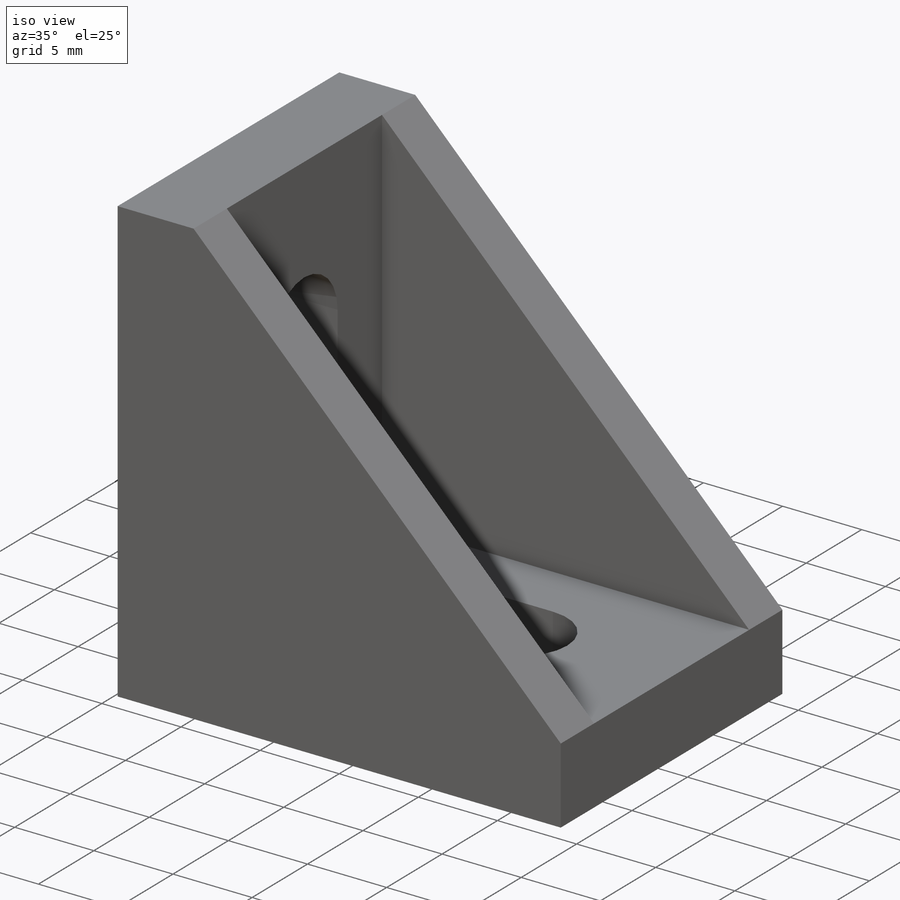
[diagram: iso view]
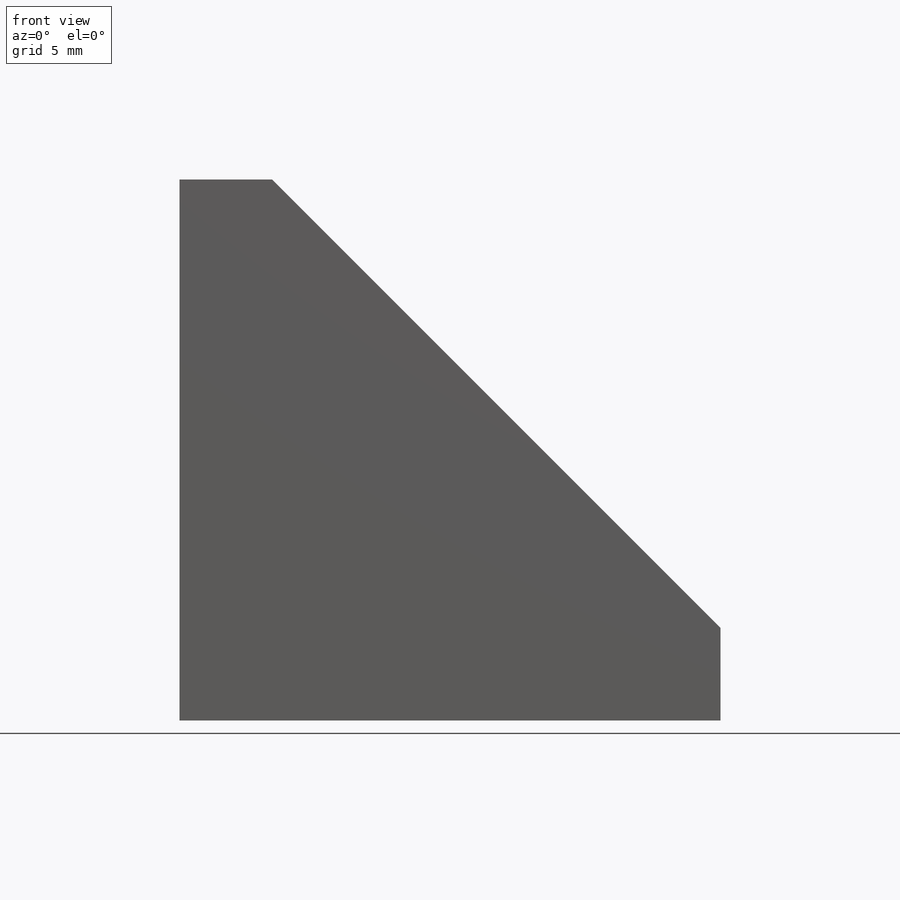
[diagram: front view]
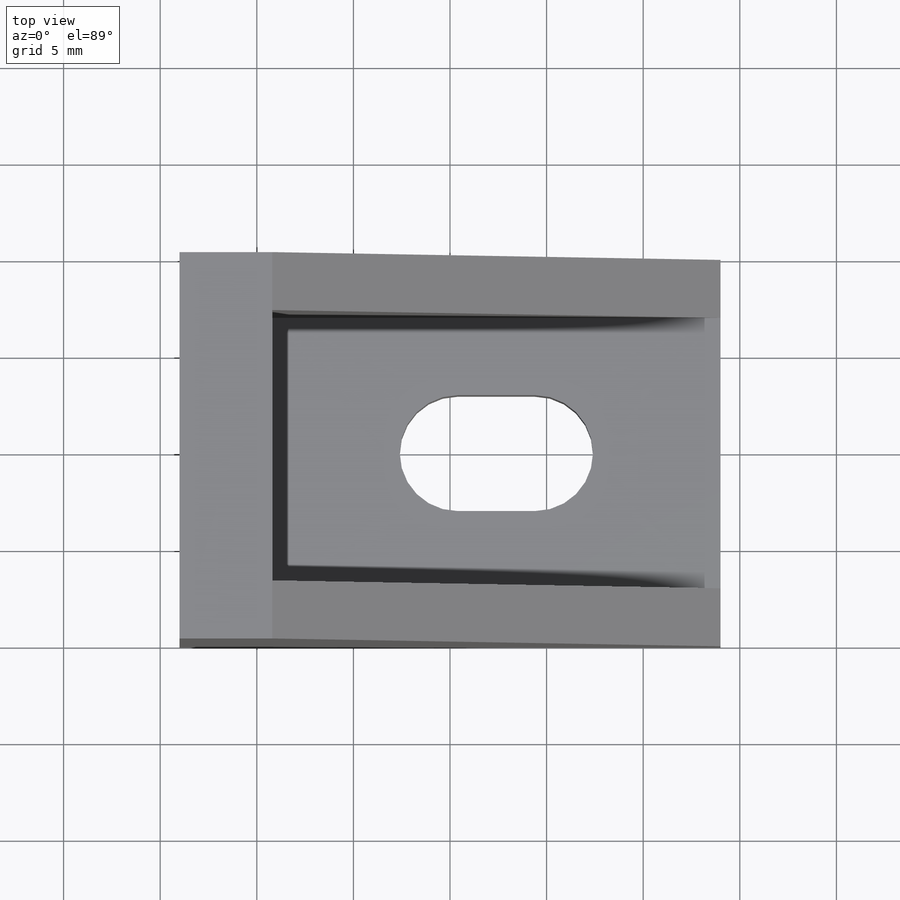
[diagram: top view]
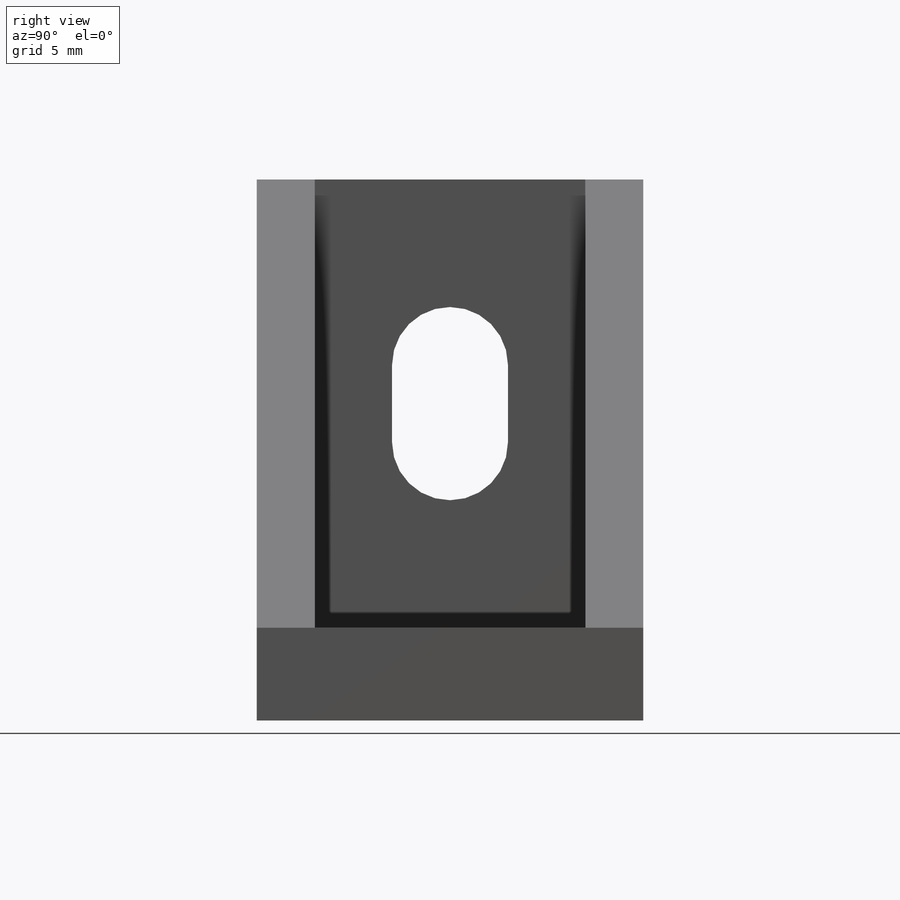
[diagram: right view]
SOLIDWORKS PART (.sldprt)
format: sldprt  version: not decoded by parser v0  size: 213,504 bytes
history: native  units: mm
features: sketch x6, extrude x4, cut_extrude x2, material x1 (+11 scaffold rows collapsed)
feature tree (24):
  scaffold x11  (default folders/planes/origin — collapsed)
  material  "Material <not specified>"
  sketch  "Sketch1"  dims[D1=28.0mm D2=20.0mm]
  extrude  "Boss-Extrude1"  Depth=4.8mm
  sketch  "Sketch2"  dims[D1=28.0mm D2=20.0mm]
  extrude  "Boss-Extrude2"  Depth=4.8mm
  sketch  "Sketch3"  dims[c1.D1=~2.091166mm c1.D3=3.0mm c2.D1=4.0mm c2.D2=11.6mm]
  cut_extrude  "Cut-Extrude1"  [1 undecoded]
  sketch  "Sketch4"  dims[c1.D1=2.0mm c1.D3=3.0mm c2.D1=~15.38286mm c2.D2=4.0mm c3.D1=11.6mm c3.D2=4.0mm]
  cut_extrude  "Cut-Extrude2"  [1 undecoded]
  sketch  "Sketch5"
  extrude  "Boss-Extrude3"  Depth=3mm
  sketch  "Sketch6"
  extrude  "Boss-Extrude4"  Depth=3mm
decode coverage: 8 of 12 modeling features carry decoded parameters
note: ~ marks probable driven/reference dimensions
note: 2 parameter values undecoded
note: suppression state not decoded; provenance and decode notes live in map.json
